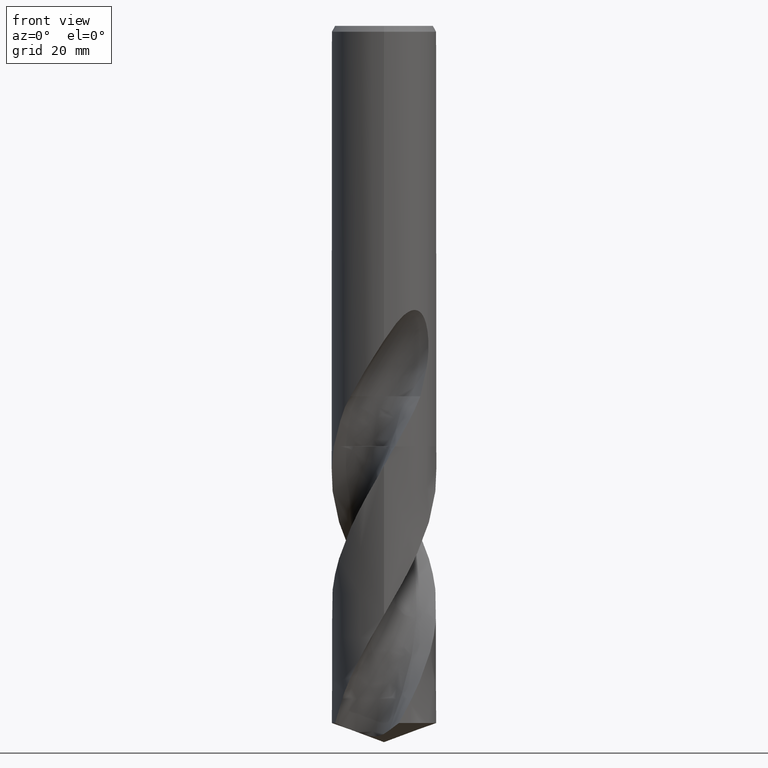
[diagram: clean part render]
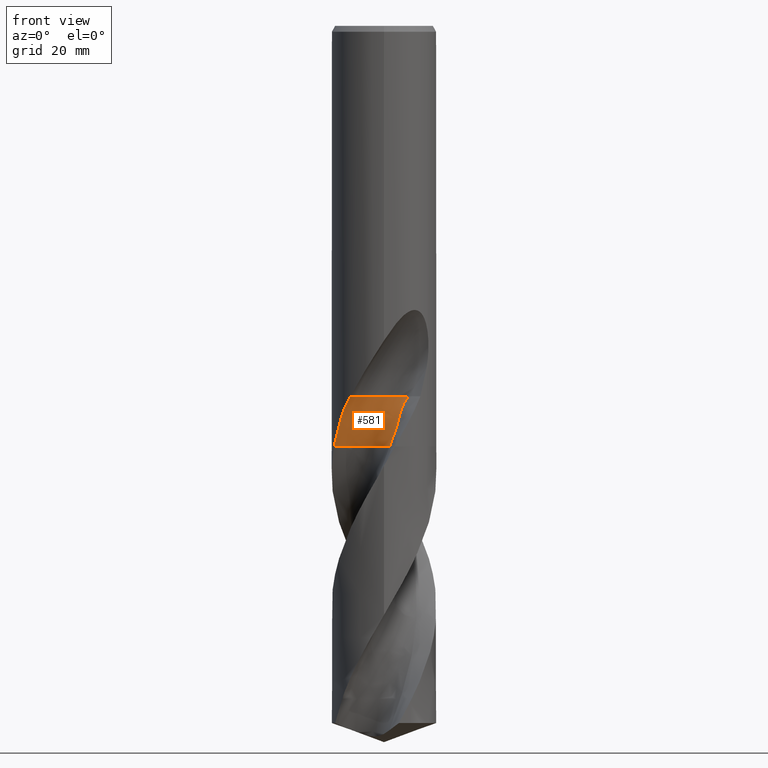
[diagram: same view with one face highlighted and labeled with its STEP entity id]
A machine part, front view. The second image highlights one B-rep face of the part: STEP entity #581.
In plain terms, the highlighted face is a freeform B-spline surface patch.
Its self-contained STEP definition (entity closure, byte-faithful):
#313=VERTEX_POINT('',#830);
#335=EDGE_CURVE('',#355,#313,#854,.T.);
#337=EDGE_CURVE('',#605,#355,#856,.T.);
#355=VERTEX_POINT('',#876);
#397=EDGE_CURVE('',#483,#605,#922,.T.);
#483=VERTEX_POINT('',#1017);
#495=VERTEX_POINT('',#1030);
#567=EDGE_CURVE('',#313,#495,#1109,.T.);
#581=ADVANCED_FACE('',(#1123),#1124,.F.);
#605=VERTEX_POINT('',#1151);
#649=EDGE_CURVE('',#495,#483,#1198,.T.);
#830=CARTESIAN_POINT('',(0.971475735130456,-5.57167524575661,-72.2));
#854=B_SPLINE_CURVE_WITH_KNOTS('',3,(#2276,#2277,#2278,#2279,#2280,#2281,#2282,#2283,#2284,#2285,#2286,#2287,#2288,#2289,#2290,#2291,#2292,#2293,#2294,#2295,#2296,#2297,#2298,#2299,#2300,#2301,#2302,#2303,#2304,#2305,#2306,#2307,#2308,#2309,#2310,#2311,#2312,#2313,#2314,#2315,#2316,#2317,#2318),.UNSPECIFIED.,.F.,.F.,(4,1,2,2,2,2,2,2,1,2,2,2,2,2,2,2,2,2,2,2,1,2,4),(0.0,1.19578194183412,2.39156388366823,3.58734582550235,4.78312776733646,7.17469165100469,9.56625553467293,11.9578194183412,14.3493833020094,19.1325110693459,23.9156388366823,28.6987666040188,33.4818943713552,38.2650221386917,43.0481499060282,47.8312776733646,52.6144054407011,57.3975332080376,62.180660975374,66.9637887427105,71.7469165100469,74.1384803937152,76.5300442773834),.UNSPECIFIED.);
#856=CIRCLE('',#2321,6.0);
#876=CARTESIAN_POINT('',(4.24264068704858,-4.45735931295143,-63.613));
#922=CIRCLE('',#3381,6.0);
#1017=CARTESIAN_POINT('',(-5.73492168841538,-6.93618578382549,-63.613));
#1030=CARTESIAN_POINT('',(-8.59815028993425,-2.659287797833,-72.2));
#1109=B_SPLINE_CURVE_WITH_KNOTS('',3,(#5304,#5305,#5306,#5307,#5308,#5309,#5310,#5311,#5312,#5313,#5314,#5315,#5316,#5317),.UNSPECIFIED.,.F.,.F.,(4,2,2,2,2,2,4),(0.0,2.34261914254253,4.68379508840427,7.02464312876339,9.36642841022082,10.9230604164539,12.4797344473652),.UNSPECIFIED.);
#1123=FACE_OUTER_BOUND('',#5339,.T.);
#1124=B_SPLINE_SURFACE_WITH_KNOTS('',3,3,((#5340,#5341,#5342,#5343,#5344,#5345,#5346,#5347,#5348,#5349,#5350,#5351,#5352,#5353,#5354,#5355,#5356,#5357,#5358,#5359,#5360,#5361,#5362,#5363,#5364,#5365,#5366,#5367,#5368,#5369,#5370,#5371,#5372,#5373,#5374,#5375,#5376,#5377,#5378,#5379,#5380,#5381,#5382),(#5383,#5384,#5385,#5386,#5387,#5388,#5389,#5390,#5391,#5392,#5393,#5394,#5395,#5396,#5397,#5398,#5399,#5400,#5401,#5402,#5403,#5404,#5405,#5406,#5407,#5408,#5409,#5410,#5411,#5412,#5413,#5414,#5415,#5416,#5417,#5418,#5419,#5420,#5421,#5422,#5423,#5424,#5425),(#5426,#5427,#5428,#5429,#5430,#5431,#5432,#5433,#5434,#5435,#5436,#5437,#5438,#5439,#5440,#5441,#5442,#5443,#5444,#5445,#5446,#5447,#5448,#5449,#5450,#5451,#5452,#5453,#5454,#5455,#5456,#5457,#5458,#5459,#5460,#5461,#5462,#5463,#5464,#5465,#5466,#5467,#5468),(#5469,#5470,#5471,#5472,#5473,#5474,#5475,#5476,#5477,#5478,#5479,#5480,#5481,#5482,#5483,#5484,#5485,#5486,#5487,#5488,#5489,#5490,#5491,#5492,#5493,#5494,#5495,#5496,#5497,#5498,#5499,#5500,#5501,#5502,#5503,#5504,#5505,#5506,#5507,#5508,#5509,#5510,#5511),(#5512,#5513,#5514,#5515,#5516,#5517,#5518,#5519,#5520,#5521,#5522,#5523,#5524,#5525,#5526,#5527,#5528,#5529,#5530,#5531,#5532,#5533,#5534,#5535,#5536,#5537,#5538,#5539,#5540,#5541,#5542,#5543,#5544,#5545,#5546,#5547,#5548,#5549,#5550,#5551,#5552,#5553,#5554),(#5555,#5556,#5557,#5558,#5559,#5560,#5561,#5562,#5563,#5564,#5565,#5566,#5567,#5568,#5569,#5570,#5571,#5572,#5573,#5574,#5575,#5576,#5577,#5578,#5579,#5580,#5581,#5582,#5583,#5584,#5585,#5586,#5587,#5588,#5589,#5590,#5591,#5592,#5593,#5594,#5595,#5596,#5597),(#5598,#5599,#5600,#5601,#5602,#5603,#5604,#5605,#5606,#5607,#5608,#5609,#5610,#5611,#5612,#5613,#5614,#5615,#5616,#5617,#5618,#5619,#5620,#5621,#5622,#5623,#5624,#5625,#5626,#5627,#5628,#5629,#5630,#5631,#5632,#5633,#5634,#5635,#5636,#5637,#5638,#5639,#5640),(#5641,#5642,#5643,#5644,#5645,#5646,#5647,#5648,#5649,#5650,#5651,#5652,#5653,#5654,#5655,#5656,#5657,#5658,#5659,#5660,#5661,#5662,#5663,#5664,#5665,#5666,#5667,#5668,#5669,#5670,#5671,#5672,#5673,#5674,#5675,#5676,#5677,#5678,#5679,#5680,#5681,#5682,#5683),(#5684,#5685,#5686,#5687,#5688,#5689,#5690,#5691,#5692,#5693,#5694,#5695,#5696,#5697,#5698,#5699,#5700,#5701,#5702,#5703,#5704,#5705,#5706,#5707,#5708,#5709,#5710,#5711,#5712,#5713,#5714,#5715,#5716,#5717,#5718,#5719,#5720,#5721,#5722,#5723,#5724,#5725,#5726),(#5727,#5728,#5729,#5730,#5731,#5732,#5733,#5734,#5735,#5736,#5737,#5738,#5739,#5740,#5741,#5742,#5743,#5744,#5745,#5746,#5747,#5748,#5749,#5750,#5751,#5752,#5753,#5754,#5755,#5756,#5757,#5758,#5759,#5760,#5761,#5762,#5763,#5764,#5765,#5766,#5767,#5768,#5769),(#5770,#5771,#5772,#5773,#5774,#5775,#5776,#5777,#5778,#5779,#5780,#5781,#5782,#5783,#5784,#5785,#5786,#5787,#5788,#5789,#5790,#5791,#5792,#5793,#5794,#5795,#5796,#5797,#5798,#5799,#5800,#5801,#5802,#5803,#5804,#5805,#5806,#5807,#5808,#5809,#5810,#5811,#5812),(#5813,#5814,#5815,#5816,#5817,#5818,#5819,#5820,#5821,#5822,#5823,#5824,#5825,#5826,#5827,#5828,#5829,#5830,#5831,#5832,#5833,#5834,#5835,#5836,#5837,#5838,#5839,#5840,#5841,#5842,#5843,#5844,#5845,#5846,#5847,#5848,#5849,#5850,#5851,#5852,#5853,#5854,#5855),(#5856,#5857,#5858,#5859,#5860,#5861,#5862,#5863,#5864,#5865,#5866,#5867,#5868,#5869,#5870,#5871,#5872,#5873,#5874,#5875,#5876,#5877,#5878,#5879,#5880,#5881,#5882,#5883,#5884,#5885,#5886,#5887,#5888,#5889,#5890,#5891,#5892,#5893,#5894,#5895,#5896,#5897,#5898),(#5899,#5900,#5901,#5902,#5903,#5904,#5905,#5906,#5907,#5908,#5909,#5910,#5911,#5912,#5913,#5914,#5915,#5916,#5917,#5918,#5919,#5920,#5921,#5922,#5923,#5924,#5925,#5926,#5927,#5928,#5929,#5930,#5931,#5932,#5933,#5934,#5935,#5936,#5937,#5938,#5939,#5940,#5941)),.UNSPECIFIED.,.F.,.F.,.F.,(4,1,1,1,1,1,1,1,1,1,1,4),(4,1,2,2,2,2,2,2,1,2,2,2,2,2,2,2,2,2,2,2,1,2,4),(8.06827116691296E-017,0.294525393809048,0.589050787618095,0.883576181427143,1.17810157523619,1.47262696904524,1.76715236285429,2.06167775666333,2.35620315047238,2.65072854428143,2.94525393809048,3.14160420062984),(0.0,1.19578194183412,2.39156388366823,3.58734582550235,4.78312776733646,7.17469165100469,9.56625553467293,11.9578194183412,14.3493833020094,19.1325110693459,23.9156388366823,28.6987666040188,33.4818943713552,38.2650221386917,43.0481499060282,47.8312776733646,52.6144054407011,57.3975332080376,62.180660975374,66.9637887427105,71.7469165100469,74.1384803937152,76.5300442773834),.UNSPECIFIED.);
#1151=CARTESIAN_POINT('',(0.982866494863649,-2.78102920504439,-63.613));
#1198=B_SPLINE_CURVE_WITH_KNOTS('',3,(#6681,#6682,#6683,#6684,#6685,#6686,#6687,#6688,#6689,#6690,#6691,#6692,#6693,#6694),.UNSPECIFIED.,.F.,.F.,(4,2,2,2,2,2,4),(0.0,2.51497102753095,4.40140357253815,5.0854005997743,6.3209228325184,7.33800256463867,10.2288207719807),.UNSPECIFIED.);
#2276=CARTESIAN_POINT('',(4.24264068704858,-4.45735931295143,-63.613));
#2277=CARTESIAN_POINT('',(3.99184971480068,-4.44339832717795,-63.9219604895747));
#2278=CARTESIAN_POINT('',(3.55141274316238,-4.44710550667542,-64.5391119708282));
#2279=CARTESIAN_POINT('',(3.23426353705191,-4.50735511855796,-65.1547219489491));
#2280=CARTESIAN_POINT('',(2.97760663075765,-4.59716562354658,-65.7705236812179));
#2281=CARTESIAN_POINT('',(2.8837643854183,-4.65927733703094,-66.0786084281627));
#2282=CARTESIAN_POINT('',(2.75652983630361,-4.82242785907191,-66.6983203833031));
#2283=CARTESIAN_POINT('',(2.69044340102281,-4.90209076743256,-67.0087591284033));
#2284=CARTESIAN_POINT('',(2.48456900634331,-5.13478026539436,-67.9418259341438));
#2285=CARTESIAN_POINT('',(2.29562159573407,-5.24854553214003,-68.5635772143915));
#2286=CARTESIAN_POINT('',(1.8512830908097,-5.38980899876269,-69.7994910424539));
#2287=CARTESIAN_POINT('',(1.62437682005681,-5.44665689080103,-70.4171205676312));
#2288=CARTESIAN_POINT('',(1.16842171806357,-5.53685254244701,-71.651669847765));
#2289=CARTESIAN_POINT('',(0.945066742041519,-5.57755189841988,-72.2697320983262));
#2290=CARTESIAN_POINT('',(0.505070410200188,-5.65083949107343,-73.5090046150527));
#2291=CARTESIAN_POINT('',(-0.171906331511537,-5.70390413066005,-75.3665400420304));
#2292=CARTESIAN_POINT('',(-0.855278903470644,-5.61850456333409,-77.2210967160858));
#2293=CARTESIAN_POINT('',(-1.7360014571889,-5.4180824675941,-79.6961450900085));
#2294=CARTESIAN_POINT('',(-2.16505067583684,-5.25419825455156,-80.9335760342903));
#2295=CARTESIAN_POINT('',(-2.97307998789446,-4.85094301423908,-83.4083112303298));
#2296=CARTESIAN_POINT('',(-3.3509810801269,-4.59010411733905,-84.6457053198216));
#2297=CARTESIAN_POINT('',(-4.03998321585692,-4.00606525305762,-87.1205120392962));
#2298=CARTESIAN_POINT('',(-4.34506887399339,-3.66282121604079,-88.35790853642));
#2299=CARTESIAN_POINT('',(-4.87571279999114,-2.931935410881,-90.8326939089567));
#2300=CARTESIAN_POINT('',(-5.09058669145781,-2.52609648597529,-92.0700885549745));
#2301=CARTESIAN_POINT('',(-5.4325039087877,-1.69012595979952,-94.5448841616523));
#2302=CARTESIAN_POINT('',(-5.54488234916025,-1.24489613603748,-95.7822780271807));
#2303=CARTESIAN_POINT('',(-5.67862873758927,-0.351732581284816,-98.2570695241379));
#2304=CARTESIAN_POINT('',(-5.68205977137425,0.107452498078658,-99.4944653849482));
#2305=CARTESIAN_POINT('',(-5.59972921270233,1.00686856694413,-101.96925122842));
#2306=CARTESIAN_POINT('',(-5.49395457682976,1.45374255022339,-103.206651985817));
#2307=CARTESIAN_POINT('',(-5.20025576634246,2.30789019737168,-105.681449189052));
#2308=CARTESIAN_POINT('',(-4.9913917422373,2.71685545988852,-106.918832955109));
#2309=CARTESIAN_POINT('',(-4.50344917817408,3.47684797307517,-109.3935992443));
#2310=CARTESIAN_POINT('',(-4.20344121431763,3.82452635440693,-110.631015465607));
#2311=CARTESIAN_POINT('',(-3.54853690060283,4.44675450315793,-113.105906235705));
#2312=CARTESIAN_POINT('',(-3.17478060632659,4.71332198287949,-114.343268770571));
#2313=CARTESIAN_POINT('',(-2.39284068604233,5.16357334396649,-116.817895062131));
#2314=CARTESIAN_POINT('',(-1.75087865030108,5.41657421606941,-118.674425602827));
#2315=CARTESIAN_POINT('',(-1.09116454886021,5.56645797976707,-120.528816819276));
#2316=CARTESIAN_POINT('',(-0.652049580851345,5.64830319364401,-121.765112896837));
#2317=CARTESIAN_POINT('',(-0.419688736316046,5.65952362823183,-122.383911655654));
#2318=CARTESIAN_POINT('',(-0.181091492057835,5.64253718818886,-123.00203966582));
#2321=AXIS2_PLACEMENT_3D('',#8365,#8366,#8367);
#3381=AXIS2_PLACEMENT_3D('',#8430,#8431,#8432);
#5304=CARTESIAN_POINT('',(0.971475735130453,-5.57167524575659,-72.2));
#5305=CARTESIAN_POINT('',(0.749418834774526,-4.82304085612544,-72.2));
#5306=CARTESIAN_POINT('',(0.383272658657281,-4.1249499535059,-72.2));
#5307=CARTESIAN_POINT('',(-0.595854879744768,-2.9088855586613,-72.2));
#5308=CARTESIAN_POINT('',(-1.19929415886863,-2.4024663845777,-72.2));
#5309=CARTESIAN_POINT('',(-2.5663073061415,-1.64952433632935,-72.2));
#5310=CARTESIAN_POINT('',(-3.3167369408343,-1.41019191666941,-72.2));
#5311=CARTESIAN_POINT('',(-4.86745875971966,-1.23251759591532,-72.2));
#5312=CARTESIAN_POINT('',(-5.65290279175016,-1.29599771244217,-72.2));
#5313=CARTESIAN_POINT('',(-6.90347109898748,-1.6491539380638,-72.2));
#5314=CARTESIAN_POINT('',(-7.38242288962679,-1.85436508964187,-72.2000000000001));
#5315=CARTESIAN_POINT('',(-8.27555761415084,-2.38284236871133,-72.2000000000001));
#5316=CARTESIAN_POINT('',(-8.6859869597221,-2.70389147025735,-72.2));
#5317=CARTESIAN_POINT('',(-9.05,-3.07368511926814,-72.2));
#5339=EDGE_LOOP('',(#8607,#8608,#8609,#8610,#8611));
#5340=CARTESIAN_POINT('',(-4.24264068704858,-12.9426406870486,-63.613));
#5341=CARTESIAN_POINT('',(-4.49410517187829,-12.9280061886827,-63.9219449773615));
#5342=CARTESIAN_POINT('',(-5.00038981777688,-12.8665892635691,-64.5422166500592));
#5343=CARTESIAN_POINT('',(-5.50859146904047,-12.7290476830163,-65.1652024960231));
#5344=CARTESIAN_POINT('',(-6.01312319455351,-12.5470288974191,-65.7874434253979));
#5345=CARTESIAN_POINT('',(-6.26364937184898,-12.4315214565417,-66.0980931940682));
#5346=CARTESIAN_POINT('',(-6.75399093622371,-12.1458827756427,-66.7155735371025));
#5347=CARTESIAN_POINT('',(-6.99413441467529,-11.9938610945223,-67.0237320411335));
#5348=CARTESIAN_POINT('',(-7.69789062080469,-11.5109297059719,-67.9462134063866));
#5349=CARTESIAN_POINT('',(-8.14752637383775,-11.1776053216324,-68.5614777811024));
#5350=CARTESIAN_POINT('',(-9.0164628765494,-10.4991276422137,-69.8005130662699));
#5351=CARTESIAN_POINT('',(-9.43127227932317,-10.1355621953012,-70.4204101482136));
#5352=CARTESIAN_POINT('',(-10.2148291589882,-9.36238255811835,-71.6609900691649));
#5353=CARTESIAN_POINT('',(-10.582103032129,-8.94872702289917,-72.2803963403265));
#5354=CARTESIAN_POINT('',(-11.2587606557898,-8.07008565668913,-73.5156934032923));
#5355=CARTESIAN_POINT('',(-12.1978583633769,-6.69674430405435,-75.3701763417519));
#5356=CARTESIAN_POINT('',(-12.8857486942738,-5.17572096743599,-77.2279858514397));
#5357=CARTESIAN_POINT('',(-13.5417138891053,-3.06153723233831,-79.7024892904261));
#5358=CARTESIAN_POINT('',(-13.7464296713277,-1.9677373266301,-80.9398451454345));
#5359=CARTESIAN_POINT('',(-13.8813600005638,0.242039804003063,-83.4146984360404));
#5360=CARTESIAN_POINT('',(-13.8202874555455,1.35314509516591,-84.6520954912055));
#5361=CARTESIAN_POINT('',(-13.4267369338371,3.53166157703948,-87.1268689038967));
#5362=CARTESIAN_POINT('',(-13.103630025218,4.59649435775723,-88.3642632875652));
#5363=CARTESIAN_POINT('',(-12.2039761513477,6.61924916473669,-90.8390604633844));
#5364=CARTESIAN_POINT('',(-11.6372253310084,7.57688556872354,-92.0764568063751));
#5365=CARTESIAN_POINT('',(-10.2829393859684,9.32812631453989,-94.5512429048563));
#5366=CARTESIAN_POINT('',(-9.50496318037043,10.1237758468368,-95.7886405870159));
#5367=CARTESIAN_POINT('',(-7.7734470406116,11.5032479173475,-98.263429907499));
#5368=CARTESIAN_POINT('',(-6.82875958562033,12.0913521293672,-99.5008235234877));
#5369=CARTESIAN_POINT('',(-4.81921666546804,13.02017178939,-101.975623486626));
#5370=CARTESIAN_POINT('',(-3.76191268958958,13.3671228652639,-103.213017792021));
#5371=CARTESIAN_POINT('',(-1.58932162237623,13.792211596537,-105.687795731443));
#5372=CARTESIAN_POINT('',(-0.479866469428093,13.8781712254266,-106.925193531646));
#5373=CARTESIAN_POINT('',(1.73154231752139,13.7750805312218,-109.400008495146));
#5374=CARTESIAN_POINT('',(2.82964992031788,13.5950915233738,-110.637388003313));
#5375=CARTESIAN_POINT('',(4.95336474507951,12.9700090672411,-113.112138099681));
#5376=CARTESIAN_POINT('',(5.97745967125131,12.534306424348,-114.349633844239));
#5377=CARTESIAN_POINT('',(7.89160716009322,11.4214732442257,-116.824585812774));
#5378=CARTESIAN_POINT('',(9.2282170786272,10.4230059558837,-118.680060746701));
#5379=CARTESIAN_POINT('',(10.3557935115381,9.20052643935552,-120.535150402933));
#5380=CARTESIAN_POINT('',(11.0527251953334,8.33856010582883,-121.772016995176));
#5381=CARTESIAN_POINT('',(11.378670177648,7.8943477468716,-122.389812972891));
#5382=CARTESIAN_POINT('',(11.6835397836118,7.43989230028192,-123.008307730503));
#5383=CARTESIAN_POINT('',(-4.65914407156236,-12.5261004599468,-63.613));
#5384=CARTESIAN_POINT('',(-4.91057549280717,-12.5114329014716,-63.9219441240965));
#5385=CARTESIAN_POINT('',(-5.41366326647045,-12.4467838602583,-64.5423874229073));
#5386=CARTESIAN_POINT('',(-5.91215500223232,-12.2998640812852,-65.1657789722609));
#5387=CARTESIAN_POINT('',(-6.40334206606923,-12.1056778686353,-65.7883740917699));
#5388=CARTESIAN_POINT('',(-6.64514860137759,-11.9824793379926,-66.0991649459844));
#5389=CARTESIAN_POINT('',(-7.11345969024043,-11.6790178659794,-66.7165225405031));
#5390=CARTESIAN_POINT('',(-7.34223027527148,-11.5184528761053,-67.024555621703));
#5391=CARTESIAN_POINT('',(-8.01085828362677,-11.0110837967681,-67.9464547352447));
#5392=CARTESIAN_POINT('',(-8.4385468123975,-10.6649637448211,-68.5613622950569));
#5393=CARTESIAN_POINT('',(-9.2672432952533,-9.96564535065292,-69.8005692898164));
#5394=CARTESIAN_POINT('',(-9.66141522507873,-9.59285710281926,-70.4205910833));
#5395=CARTESIAN_POINT('',(-10.4025900456116,-8.80359810174911,-71.6615027314455));
#5396=CARTESIAN_POINT('',(-10.7475602777494,-8.38287891205146,-72.2809829317883));
#5397=CARTESIAN_POINT('',(-11.3774898420573,-7.492622575737,-73.5160613086653));
#5398=CARTESIAN_POINT('',(-12.2465683057226,-6.10641743084887,-75.3703763639415));
#5399=CARTESIAN_POINT('',(-12.8639871627517,-4.58517547925218,-77.2283647856213));
#5400=CARTESIAN_POINT('',(-13.4260110421513,-2.4820287323482,-79.7028382508501));
#5401=CARTESIAN_POINT('',(-13.5850799860529,-1.39924282006029,-80.9401899423949));
#5402=CARTESIAN_POINT('',(-13.6313340377502,0.777489549625262,-83.4150497949737));
#5403=CARTESIAN_POINT('',(-13.5285249665119,1.86704484599133,-84.6524469539009));
#5404=CARTESIAN_POINT('',(-13.0567077363111,3.99241796681623,-87.1272185870741));
#5405=CARTESIAN_POINT('',(-12.6981811924831,5.02641271792139,-88.3646128748062));
#5406=CARTESIAN_POINT('',(-11.7351157489851,6.97895488742411,-90.8394106067247));
#5407=CARTESIAN_POINT('',(-11.1412802310528,7.89822205032598,-92.0768071061784));
#5408=CARTESIAN_POINT('',(-9.74206962920693,9.56619825551823,-94.5515926485602));
#5409=CARTESIAN_POINT('',(-8.94689410929379,10.3181417154883,-95.7889906085655));
#5410=CARTESIAN_POINT('',(-7.19151035014492,11.6060515194074,-98.2637797066088));
#5411=CARTESIAN_POINT('',(-6.24049663704397,12.1476146352621,-99.5011733051475));
#5412=CARTESIAN_POINT('',(-4.22951458725611,12.9818320557169,-101.975973935605));
#5413=CARTESIAN_POINT('',(-3.17711765585823,13.2820751023458,-103.213367967073));
#5414=CARTESIAN_POINT('',(-1.02559216218648,13.6149345257979,-105.688144794296));
#5415=CARTESIAN_POINT('',(0.0680054597627765,13.6566870233751,-106.925543507985));
#5416=CARTESIAN_POINT('',(2.23704383786249,13.4689974836474,-109.400360918322));
#5417=CARTESIAN_POINT('',(3.30924779094499,13.2498328619314,-110.637738546174));
#5418=CARTESIAN_POINT('',(5.37173195670323,12.552652785993,-113.11248085715));
#5419=CARTESIAN_POINT('',(6.36135275062111,12.0850281185885,-114.349983900756));
#5420=CARTESIAN_POINT('',(8.19876969995141,10.9166210893828,-116.824953886912));
#5421=CARTESIAN_POINT('',(9.47394665694462,9.88405796467554,-118.680370684182));
#5422=CARTESIAN_POINT('',(10.5341560507997,8.63861519854153,-120.535498787767));
#5423=CARTESIAN_POINT('',(11.1847577311921,7.7639953514772,-121.772396744017));
#5424=CARTESIAN_POINT('',(11.4883464712829,7.31519017389342,-122.390137614606));
#5425=CARTESIAN_POINT('',(11.7717416316217,6.85748252594276,-123.008652503016));
#5426=CARTESIAN_POINT('',(-5.36858526657363,-11.5695730948488,-63.613));
#5427=CARTESIAN_POINT('',(-5.61994076581025,-11.5548492254407,-63.9219426433747));
#5428=CARTESIAN_POINT('',(-6.11567681717526,-11.4846843082899,-64.542683750527));
#5429=CARTESIAN_POINT('',(-6.59196924676397,-11.3218884079689,-65.1667793027969));
#5430=CARTESIAN_POINT('',(-7.05286101632276,-11.107325619986,-65.789989010925));
#5431=CARTESIAN_POINT('',(-7.27494890829169,-10.9713313484961,-66.1010246905909));
#5432=CARTESIAN_POINT('',(-7.69391702505488,-10.6387590741161,-66.7181692853782));
#5433=CARTESIAN_POINT('',(-7.89740999742451,-10.4644809455048,-67.0259847256299));
#5434=CARTESIAN_POINT('',(-8.48853973739906,-9.91865610896371,-67.9468735051905));
#5435=CARTESIAN_POINT('',(-8.86854253308876,-9.5534540395119,-68.5611619240053));
#5436=CARTESIAN_POINT('',(-9.61058457992135,-8.82438886680424,-69.8006668263856));
#5437=CARTESIAN_POINT('',(-9.96074945293422,-8.43927558294339,-70.4209050688791));
#5438=CARTESIAN_POINT('',(-10.6123978985407,-7.63042683491461,-71.6623923017132));
#5439=CARTESIAN_POINT('',(-10.9106692471613,-7.20219469352577,-72.2820007812912));
#5440=CARTESIAN_POINT('',(-11.4437045730717,-6.30256565812234,-73.5166997374331));
#5441=CARTESIAN_POINT('',(-12.1689393208581,-4.91139666646344,-75.370723423726));
#5442=CARTESIAN_POINT('',(-12.6453596030156,-3.41061352175991,-77.2290223278425));
#5443=CARTESIAN_POINT('',(-13.0227854376022,-1.35739459464455,-79.7034437783159));
#5444=CARTESIAN_POINT('',(-13.093832581263,-0.310170407108541,-80.9407883707753));
#5445=CARTESIAN_POINT('',(-12.9725438738229,1.77418264811887,-83.4156593621102));
#5446=CARTESIAN_POINT('',(-12.7926570338138,2.80826506203645,-84.6530568952942));
#5447=CARTESIAN_POINT('',(-12.1800746493944,4.80415086450278,-87.1278252999688));
#5448=CARTESIAN_POINT('',(-11.7598573589859,5.76597101862394,-88.3652193397159));
#5449=CARTESIAN_POINT('',(-10.6907962833148,7.55929420072338,-90.8400183402379));
#5450=CARTESIAN_POINT('',(-10.0541720976949,8.3937966994252,-92.0774149175792));
#5451=CARTESIAN_POINT('',(-8.58980732927363,9.8819337963818,-94.5521995785732));
#5452=CARTESIAN_POINT('',(-7.7731951001992,10.5413707529602,-95.7895978026221));
#5453=CARTESIAN_POINT('',(-5.99722904502307,11.6390906896032,-98.2643868672745));
#5454=CARTESIAN_POINT('',(-5.04736392923353,12.0857017595262,-99.5017801476056));
#5455=CARTESIAN_POINT('',(-3.06155505299221,12.7303002226596,-101.976582159288));
#5456=CARTESIAN_POINT('',(-2.03282137553454,12.9385882437789,-103.213975485624));
#5457=CARTESIAN_POINT('',(0.0492280542303963,13.0932473330156,-105.688750619262));
#5458=CARTESIAN_POINT('',(1.09800446811656,13.0512933418051,-106.926150373721));
#5459=CARTESIAN_POINT('',(3.15722236154518,12.7069805665156,-109.400972882205));
#5460=CARTESIAN_POINT('',(4.16600607493115,12.4171506810092,-110.638346762055));
#5461=CARTESIAN_POINT('',(6.08465866033253,11.5939407529614,-113.113075681675));
#5462=CARTESIAN_POINT('',(6.99587010113756,11.0726984197006,-114.350591501548));
#5463=CARTESIAN_POINT('',(8.66335734073134,9.81590268122293,-116.825592413044));
#5464=CARTESIAN_POINT('',(9.80556620400836,8.73336836357658,-118.680908577387));
#5465=CARTESIAN_POINT('',(10.7242412395013,7.46197765963636,-120.536103282299));
#5466=CARTESIAN_POINT('',(11.278436890688,6.57579001278329,-121.773055733994));
#5467=CARTESIAN_POINT('',(11.5359542135797,6.12442885074865,-122.390700802172));
#5468=CARTESIAN_POINT('',(11.7754388961091,5.66658480502962,-123.009250765064));
#5469=CARTESIAN_POINT('',(-5.97041833799895,-9.88759179198031,-63.6129999999998));
#5470=CARTESIAN_POINT('',(-6.22164032777569,-9.87282015596255,-63.9219412916721));
#5471=CARTESIAN_POINT('',(-6.70442136216115,-9.79793893497781,-64.5429543370633));
#5472=CARTESIAN_POINT('',(-7.14193470435874,-9.622020344237,-65.1676927289059));
#5473=CARTESIAN_POINT('',(-7.55046636350555,-9.39140002742234,-65.791463641969));
#5474=CARTESIAN_POINT('',(-7.73867734038814,-9.24562451975937,-66.1027228757635));
#5475=CARTESIAN_POINT('',(-8.07413923038838,-8.89275254114932,-66.7196729731778));
#5476=CARTESIAN_POINT('',(-8.23537567599914,-8.70979762831979,-67.0272896826705));
#5477=CARTESIAN_POINT('',(-8.69851397962238,-8.14251996150999,-67.9472558905871));
#5478=CARTESIAN_POINT('',(-9.00175695704139,-7.77069199861054,-68.5609789448616));
#5479=CARTESIAN_POINT('',(-9.60645737916169,-7.0366617148604,-69.8007559045045));
#5480=CARTESIAN_POINT('',(-9.88808535941242,-6.65301992579096,-70.4211917750757));
#5481=CARTESIAN_POINT('',(-10.4026927529321,-5.85503638370245,-71.6632045957992));
#5482=CARTESIAN_POINT('',(-10.6306586440211,-5.43635527497984,-72.2829302241223));
#5483=CARTESIAN_POINT('',(-11.0205258822957,-4.56546643520901,-73.5172826883071));
#5484=CARTESIAN_POINT('',(-11.5371187223049,-3.22981089691623,-75.3710403467694));
#5485=CARTESIAN_POINT('',(-11.8200518926456,-1.81979496181662,-77.2296227601314));
#5486=CARTESIAN_POINT('',(-11.9542386971844,0.0813694214883973,-79.7039966900504));
#5487=CARTESIAN_POINT('',(-11.9144208920183,1.03921630432941,-80.9413346904641));
#5488=CARTESIAN_POINT('',(-11.5928610033098,2.91800479550347,-83.4162160966756));
#5489=CARTESIAN_POINT('',(-11.3264895261515,3.83889424659998,-84.6536138677905));
#5490=CARTESIAN_POINT('',(-10.5682329561595,5.58760952819448,-87.1283792883098));
#5491=CARTESIAN_POINT('',(-10.0908912772455,6.41896265777249,-88.3657731978814));
#5492=CARTESIAN_POINT('',(-8.93901302057976,7.93757812572927,-90.8405732003864));
#5493=CARTESIAN_POINT('',(-8.27787979076814,8.63177239343291,-92.0779699504979));
#5494=CARTESIAN_POINT('',(-6.79830312994792,9.83338739224129,-94.5527537597986));
#5495=CARTESIAN_POINT('',(-5.99120276822019,10.3507011603192,-95.790152386238));
#5496=CARTESIAN_POINT('',(-4.26851267008937,11.1664505944863,-98.2649411447032));
#5497=CARTESIAN_POINT('',(-3.36164447529128,11.4772630315461,-99.5023342701655));
#5498=CARTESIAN_POINT('',(-1.49454255807586,11.8606353568095,-101.977137547379));
#5499=CARTESIAN_POINT('',(-0.539819345509152,11.9472311717464,-103.214530317253));
#5500=CARTESIAN_POINT('',(1.36490104244836,11.8763471712547,-105.6893037253));
#5501=CARTESIAN_POINT('',(2.31288776517076,11.73375488164,-106.92670477794));
#5502=CARTESIAN_POINT('',(4.14626033926824,11.2124403698607,-109.401531425202));
#5503=CARTESIAN_POINT('',(5.03323546343257,10.8487913893512,-110.638902106762));
#5504=CARTESIAN_POINT('',(6.69054371251094,9.90730553861208,-113.113618866584));
#5505=CARTESIAN_POINT('',(7.46585414167664,9.34324219358609,-114.351146181045));
#5506=CARTESIAN_POINT('',(8.85092593180118,8.0335673648129,-116.826175606651));
#5507=CARTESIAN_POINT('',(9.78050536741576,6.93720477056117,-118.68139969209));
#5508=CARTESIAN_POINT('',(10.4847157640473,5.69020012332516,-120.53665527914));
#5509=CARTESIAN_POINT('',(10.8954882130657,4.8293888734298,-121.773657459974));
#5510=CARTESIAN_POINT('',(11.0857593229566,4.39442119219567,-122.391215120285));
#5511=CARTESIAN_POINT('',(11.2621534143405,3.95550273077601,-123.009797054756));
#5512=CARTESIAN_POINT('',(-6.05808134824821,-8.10333302552071,-63.613));
#5513=CARTESIAN_POINT('',(-6.30916171873843,-8.08855442894018,-63.9219409243529));
#5514=CARTESIAN_POINT('',(-6.77817643604788,-8.01292067808637,-64.5430277084907));
#5515=CARTESIAN_POINT('',(-7.17477161263071,-7.83570127281624,-65.1679404059982));
#5516=CARTESIAN_POINT('',(-7.52853712173122,-7.60491387049338,-65.7918634940849));
#5517=CARTESIAN_POINT('',(-7.68149091947646,-7.45961206213166,-66.1031833411096));
#5518=CARTESIAN_POINT('',(-7.93114932207932,-7.11155526571189,-66.7200807057579));
#5519=CARTESIAN_POINT('',(-8.04942975340801,-6.93256383090294,-67.0276435250217));
#5520=CARTESIAN_POINT('',(-8.38385968862177,-6.38191172564522,-67.9473595772996));
#5521=CARTESIAN_POINT('',(-8.6117248229757,-6.02602541301751,-68.5609293308178));
#5522=CARTESIAN_POINT('',(-9.08355624333238,-5.32711211725359,-69.8007800569906));
#5523=CARTESIAN_POINT('',(-9.30002569631525,-4.96477376987201,-70.4212695094315));
#5524=CARTESIAN_POINT('',(-9.68664721537831,-4.2169683432417,-71.6634248588262));
#5525=CARTESIAN_POINT('',(-9.85010760623976,-3.82783556409454,-72.2831822278613));
#5526=CARTESIAN_POINT('',(-10.1113142312556,-3.0260092587092,-73.5174407748744));
#5527=CARTESIAN_POINT('',(-10.4443640273532,-1.80404261932651,-75.371126264757));
#5528=CARTESIAN_POINT('',(-10.5684900398189,-0.537051849051603,-77.2297855655842));
#5529=CARTESIAN_POINT('',(-10.514050967036,1.14799658200369,-79.7041466174583));
#5530=CARTESIAN_POINT('',(-10.3940869279354,1.98813220787989,-80.9414828599772));
#5531=CARTESIAN_POINT('',(-9.94055204344147,3.61207196668741,-83.4163670237979));
#5532=CARTESIAN_POINT('',(-9.62427818026281,4.39953722866303,-84.6537648370475));
#5533=CARTESIAN_POINT('',(-8.79837023894061,5.86943803275375,-87.128529559576));
#5534=CARTESIAN_POINT('',(-8.30423662622822,6.55935965897123,-88.3659233986353));
#5535=CARTESIAN_POINT('',(-7.15285099789257,7.7910556091377,-90.8407236320904));
#5536=CARTESIAN_POINT('',(-6.50899356462537,8.34386871191623,-92.078120421809));
#5537=CARTESIAN_POINT('',(-5.09803325054068,9.26688343036735,-94.5529040553871));
#5538=CARTESIAN_POINT('',(-4.34129150263208,9.65095499785413,-95.7903028039409));
#5539=CARTESIAN_POINT('',(-2.75143532162161,10.2123407703962,-98.2650913981678));
#5540=CARTESIAN_POINT('',(-1.92513296622888,10.4056834779097,-99.502484466857));
#5541=CARTESIAN_POINT('',(-0.247456732087765,10.5735369228824,-101.977288197984));
#5542=CARTESIAN_POINT('',(0.601117452541116,10.5651648088888,-103.214680817482));
#5543=CARTESIAN_POINT('',(2.27067257714615,10.3299256125694,-105.689453645866));
#5544=CARTESIAN_POINT('',(3.09299576932647,10.1202863244699,-106.926855243037));
#5545=CARTESIAN_POINT('',(4.65886687684833,9.49515141278017,-109.401682739245));
#5546=CARTESIAN_POINT('',(5.40784981020397,9.09622127896903,-110.639052750581));
#5547=CARTESIAN_POINT('',(6.78073342881199,8.11741694204671,-113.113766092528));
#5548=CARTESIAN_POINT('',(7.41356435594436,7.55182657849324,-114.35129666054));
#5549=CARTESIAN_POINT('',(8.51303151709299,6.2735307711942,-116.826333665032));
#5550=CARTESIAN_POINT('',(9.23512309093038,5.22565863903412,-118.681532844447));
#5551=CARTESIAN_POINT('',(9.74118265148673,4.06424599554766,-120.536804988874));
#5552=CARTESIAN_POINT('',(10.0220740896796,3.26935208243344,-121.773820585803));
#5553=CARTESIAN_POINT('',(10.1527533963287,2.86959264468619,-122.391354616096));
#5554=CARTESIAN_POINT('',(10.2742673876393,2.46709911435893,-123.009945182926));
#5555=CARTESIAN_POINT('',(-5.62402476264869,-6.37045708375645,-63.6130000000002));
#5556=CARTESIAN_POINT('',(-5.87496758355014,-6.35571293489844,-63.9219415755997));
#5557=CARTESIAN_POINT('',(-6.33059026608856,-6.28335524467924,-64.5428975436657));
#5558=CARTESIAN_POINT('',(-6.68765205307134,-6.11676888957224,-65.1675010063764));
#5559=CARTESIAN_POINT('',(-6.98896184173619,-5.90171928604761,-65.7911541297814));
#5560=CARTESIAN_POINT('',(-7.10831453845674,-5.76710530574015,-66.1023664369));
#5561=CARTESIAN_POINT('',(-7.27726158409792,-5.44856386658275,-66.7193573636798));
#5562=CARTESIAN_POINT('',(-7.35558589466486,-5.28583484744768,-67.027015781448));
#5563=CARTESIAN_POINT('',(-7.57167485811852,-4.78845491509866,-67.9471756325263));
#5564=CARTESIAN_POINT('',(-7.73203568808246,-4.46970486844951,-68.5610173465053));
#5565=CARTESIAN_POINT('',(-8.08691338921206,-3.84296643750963,-69.8007372119602));
#5566=CARTESIAN_POINT('',(-8.24721411212151,-3.51992876663046,-70.4211315859449));
#5567=CARTESIAN_POINT('',(-8.52592712123117,-2.85729309772048,-71.6630341132733));
#5568=CARTESIAN_POINT('',(-8.63623715923746,-2.51516122150827,-72.2827351279521));
#5569=CARTESIAN_POINT('',(-8.79437088467071,-1.81677210223604,-73.5171603447392));
#5570=CARTESIAN_POINT('',(-8.98478321160147,-0.756878945816268,-75.3709738203012));
#5571=CARTESIAN_POINT('',(-8.99845855897264,0.327146023061363,-77.2294967078959));
#5572=CARTESIAN_POINT('',(-8.82625109112675,1.75062901340834,-79.7038806643003));
#5573=CARTESIAN_POINT('',(-8.66376183940897,2.45485675347791,-80.9412200674925));
#5574=CARTESIAN_POINT('',(-8.15791371609091,3.7966110799567,-83.416099197098));
#5575=CARTESIAN_POINT('',(-7.83261739659875,4.44191146854542,-84.6534969079843));
#5576=CARTESIAN_POINT('',(-7.02290696638407,5.62536530963718,-87.1282630660318));
#5577=CARTESIAN_POINT('',(-6.55376002327938,6.17507103633904,-88.365656925372));
#5578=CARTESIAN_POINT('',(-5.48613441630266,7.13234516595238,-90.8404567615006));
#5579=CARTESIAN_POINT('',(-4.89984982492041,7.55487992087368,-92.0778534255749));
#5580=CARTESIAN_POINT('',(-3.63542486011488,8.23120919429237,-94.5526374692527));
#5581=CARTESIAN_POINT('',(-2.96555158994728,8.50239438688996,-95.790035939561));
#5582=CARTESIAN_POINT('',(-1.57664763644592,8.85892910249303,-98.2648248500295));
#5583=CARTESIAN_POINT('',(-0.861541716937003,8.96324747300278,-99.5022179641994));
#5584=CARTESIAN_POINT('',(0.572303452704583,8.97984979341509,-101.977020975641));
#5585=CARTESIAN_POINT('',(1.29173156192012,8.91141260860229,-103.214413918006));
#5586=CARTESIAN_POINT('',(2.68853768136091,8.58716045750853,-105.689187577013));
#5587=CARTESIAN_POINT('',(3.37114563724042,8.34983948795518,-106.926588491615));
#5588=CARTESIAN_POINT('',(4.65089629685758,7.70300657160184,-109.401414112523));
#5589=CARTESIAN_POINT('',(5.25758736110965,7.31037159886747,-110.638785608697));
#5590=CARTESIAN_POINT('',(6.3474606574343,6.37842010585442,-113.11350479179));
#5591=CARTESIAN_POINT('',(6.84350397698173,5.8527282414943,-114.351029828105));
#5592=CARTESIAN_POINT('',(7.67877351013829,4.68736714488392,-116.826053128838));
#5593=CARTESIAN_POINT('',(8.21638771149279,3.74612826949848,-118.68129659361));
#5594=CARTESIAN_POINT('',(8.55767491252906,2.72414236252067,-120.536539454088));
#5595=CARTESIAN_POINT('',(8.73341293628678,2.03002995457701,-121.773531127531));
#5596=CARTESIAN_POINT('',(8.81728682254388,1.68126137856441,-122.39110721697));
#5597=CARTESIAN_POINT('',(8.89685751817117,1.32955521125833,-123.009682392775));
#5598=CARTESIAN_POINT('',(-4.70562951569755,-4.83819916831611,-63.613));
#5599=CARTESIAN_POINT('',(-4.95645071427337,-4.82352792053742,-63.9219431878371));
#5600=CARTESIAN_POINT('',(-5.40020895019645,-4.7581927198399,-64.5425750535166));
#5601=CARTESIAN_POINT('',(-5.72252673703192,-4.613257597199,-65.1664123703256));
#5602=CARTESIAN_POINT('',(-5.97820872762819,-4.42849529877983,-65.7893966402711));
#5603=CARTESIAN_POINT('',(-6.06851012180683,-4.31386283296467,-66.1003425159462));
#5604=CARTESIAN_POINT('',(-6.16878880116018,-4.04699511832352,-66.7175652400768));
#5605=CARTESIAN_POINT('',(-6.21359790571634,-3.91142691360828,-67.0254605139882));
#5606=CARTESIAN_POINT('',(-6.33190480551105,-3.49937794917661,-67.9467198960044));
#5607=CARTESIAN_POINT('',(-6.43844835088697,-3.23576063859011,-68.5612354271983));
#5608=CARTESIAN_POINT('',(-6.7023596485347,-2.71203922251467,-69.8006310440432));
#5609=CARTESIAN_POINT('',(-6.8203187303828,-2.44291491490728,-70.4207899027779));
#5610=CARTESIAN_POINT('',(-7.0204935999524,-1.89310581159754,-71.6620659899362));
#5611=CARTESIAN_POINT('',(-7.0935857320791,-1.61137970163491,-72.281627428787));
#5612=CARTESIAN_POINT('',(-7.18311098860994,-1.04189442129192,-73.5164655483609));
#5613=CARTESIAN_POINT('',(-7.28407528570113,-0.178501552243345,-75.3705961288408));
#5614=CARTESIAN_POINT('',(-7.24516843300667,0.69837392633796,-77.2287811164293));
#5615=CARTESIAN_POINT('',(-7.03619238298246,1.83736808118969,-79.7032216815011));
#5616=CARTESIAN_POINT('',(-6.87246115331543,2.3991956706926,-80.9405688596283));
#5617=CARTESIAN_POINT('',(-6.39846675277948,3.45572960742886,-83.41543576686));
#5618=CARTESIAN_POINT('',(-6.10580491741746,3.96236769881046,-84.65283318226));
#5619=CARTESIAN_POINT('',(-5.39474596664952,4.87641089099196,-87.1276027304699));
#5620=CARTESIAN_POINT('',(-4.99021240465809,5.29919165008969,-88.3649968614508));
#5621=CARTESIAN_POINT('',(-4.08240086974499,6.01817497068128,-90.8397954368059));
#5622=CARTESIAN_POINT('',(-3.58902792112819,6.33275368042798,-92.0771919560517));
#5623=CARTESIAN_POINT('',(-2.53643777062485,6.81555692537223,-94.5519769592298));
#5624=CARTESIAN_POINT('',(-1.98246171482597,7.00393326986886,-95.7893749881834));
#5625=CARTESIAN_POINT('',(-0.845322257013718,7.22277139346311,-98.264164242677));
#5626=CARTESIAN_POINT('',(-0.262467186967959,7.2741775225024,-99.5015574959903));
#5627=CARTESIAN_POINT('',(0.894140311286769,7.21682225658041,-101.976359110912));
#5628=CARTESIAN_POINT('',(1.47254728291783,7.12839565243642,-103.213752660238));
#5629=CARTESIAN_POINT('',(2.58250987257219,6.79813855319478,-105.68852837654));
#5630=CARTESIAN_POINT('',(3.12338310456498,6.57488518334629,-106.925927765203));
#5631=CARTESIAN_POINT('',(4.12303503497589,5.99034527725188,-109.400748410253));
#5632=CARTESIAN_POINT('',(4.59538872729703,5.64503962685318,-110.638123585794));
#5633=CARTESIAN_POINT('',(5.42803881534409,4.84007738272437,-113.112857569126));
#5634=CARTESIAN_POINT('',(5.80476659648733,4.39227341440005,-114.350368649369));
#5635=CARTESIAN_POINT('',(6.41999815828661,3.4116768731573,-116.825358171789));
#5636=CARTESIAN_POINT('',(6.8120326520451,2.62603075388985,-118.680711282646));
#5637=CARTESIAN_POINT('',(7.03611621103483,1.78529888043843,-120.535881541983));
#5638=CARTESIAN_POINT('',(7.14048416779706,1.21815286934,-121.77281401392));
#5639=CARTESIAN_POINT('',(7.19436996133187,0.931766415623089,-122.390494220481));
#5640=CARTESIAN_POINT('',(7.24854628469507,0.640836253520808,-123.009031315785));
#5641=CARTESIAN_POINT('',(-3.3819877665918,-3.63851726502723,-63.613));
#5642=CARTESIAN_POINT('',(-3.63271374638276,-3.62395107733525,-63.9219456197022));
#5643=CARTESIAN_POINT('',(-4.06715688218177,-3.56878004015029,-64.5420880121995));
#5644=CARTESIAN_POINT('',(-4.36251222335101,-3.4546497287061,-65.1647682510224));
#5645=CARTESIAN_POINT('',(-4.58332378605886,-3.31211589003023,-65.7867423805902));
#5646=CARTESIAN_POINT('',(-4.65162558205845,-3.22503782526377,-66.0972858729802));
#5647=CARTESIAN_POINT('',(-4.7011926008387,-3.02755205913571,-66.7148586778082));
#5648=CARTESIAN_POINT('',(-4.72181373800708,-2.92770397116946,-67.023111661798));
#5649=CARTESIAN_POINT('',(-4.77131848461444,-2.62569610158956,-67.9460316165671));
#5650=CARTESIAN_POINT('',(-4.84236647979919,-2.43045997605276,-68.561564765156));
#5651=CARTESIAN_POINT('',(-5.04913274741561,-2.03172584684972,-69.800470723054));
#5652=CARTESIAN_POINT('',(-5.14222371652636,-1.8264846247876,-70.420273855352));
#5653=CARTESIAN_POINT('',(-5.29999452522013,-1.40744222905359,-71.6606038938703));
#5654=CARTESIAN_POINT('',(-5.35500642478242,-1.19432460651619,-72.2799544911317));
#5655=CARTESIAN_POINT('',(-5.41629615067068,-0.768108672056247,-73.5154162558109));
#5656=CARTESIAN_POINT('',(-5.48870515730604,-0.118720263571484,-75.3700256867382));
#5657=CARTESIAN_POINT('',(-5.45961297717575,0.544661778863135,-77.2277004025824));
#5658=CARTESIAN_POINT('',(-5.29803457666638,1.40074377140083,-79.702226435943));
#5659=CARTESIAN_POINT('',(-5.17445158254984,1.82594240698364,-80.9395853843934));
#5660=CARTESIAN_POINT('',(-4.8137346755759,2.61878432946432,-83.41443380165));
#5661=CARTESIAN_POINT('',(-4.59255377464584,3.00220423012264,-84.6518307161223));
#5662=CARTESIAN_POINT('',(-4.05410437962918,3.68707467734506,-87.1266055247393));
#5663=CARTESIAN_POINT('',(-3.74824648814679,4.00715223805623,-88.3640000510359));
#5664=CARTESIAN_POINT('',(-3.06253976684915,4.54449726993095,-90.8387966117758));
#5665=CARTESIAN_POINT('',(-2.68941581289949,4.78273947038578,-92.0761929530624));
#5666=CARTESIAN_POINT('',(-1.89571666935326,5.14184251566389,-94.550979434313));
#5667=CARTESIAN_POINT('',(-1.47668553775686,5.28461906752259,-95.7883769224223));
#5668=CARTESIAN_POINT('',(-0.620440890873319,5.44477346115649,-98.2631664160934));
#5669=CARTESIAN_POINT('',(-0.179501617130109,5.48393627599293,-99.5005600482236));
#5670=CARTESIAN_POINT('',(0.690337235265893,5.43628615003926,-101.975359497066));
#5671=CARTESIAN_POINT('',(1.12799283339798,5.36966724775162,-103.212754047343));
#5672=CARTESIAN_POINT('',(1.96172020113109,5.11693042541124,-105.687532759101));
#5673=CARTESIAN_POINT('',(2.37104545075135,4.9482824705675,-106.924930066706));
#5674=CARTESIAN_POINT('',(3.1207424996066,4.50466177529448,-109.399742861519));
#5675=CARTESIAN_POINT('',(3.47828242054595,4.2436437547207,-110.637123927498));
#5676=CARTESIAN_POINT('',(4.1016484781751,3.63487070792854,-113.111879931089));
#5677=CARTESIAN_POINT('',(4.38680819991084,3.29623643749563,-114.349370188352));
#5678=CARTESIAN_POINT('',(4.8451111738565,2.55632231404606,-116.824308520243));
#5679=CARTESIAN_POINT('',(5.14300088731014,1.96182882127129,-118.679827256916));
#5680=CARTESIAN_POINT('',(5.30754313134567,1.3285687388061,-120.534888004352));
#5681=CARTESIAN_POINT('',(5.38047072693468,0.903639617231113,-121.771730910338));
#5682=CARTESIAN_POINT('',(5.4237683335793,0.685654273859518,-122.389568463931));
#5683=CARTESIAN_POINT('',(5.47128617979946,0.460254688184754,-123.008048022682));
#5684=CARTESIAN_POINT('',(-1.7670914858817,-2.87472792784055,-63.613));
#5685=CARTESIAN_POINT('',(-2.01775683860812,-2.86028992990753,-63.9219486656278));
#5686=CARTESIAN_POINT('',(-2.44623645566566,-2.81754937622579,-64.5414783629149));
#5687=CARTESIAN_POINT('',(-2.72473290192571,-2.74072452199843,-65.1627102376377));
#5688=CARTESIAN_POINT('',(-2.92443444982293,-2.64872362843838,-65.7834199377811));
#5689=CARTESIAN_POINT('',(-2.97968295106517,-2.5943998723984,-66.0934597471341));
#5690=CARTESIAN_POINT('',(-3.00086230864904,-2.47802905458548,-66.7114707647306));
#5691=CARTESIAN_POINT('',(-3.00870577781226,-2.41938421284741,-67.0201715054889));
#5692=CARTESIAN_POINT('',(-3.02431352659439,-2.24265078513804,-67.9451700736853));
#5693=CARTESIAN_POINT('',(-3.08124457641,-2.1231552985106,-68.5619770131706));
#5694=CARTESIAN_POINT('',(-3.26960851608355,-1.86061490996978,-69.8002700404719));
#5695=CARTESIAN_POINT('',(-3.35744652189175,-1.72372481158932,-70.4196278883732));
#5696=CARTESIAN_POINT('',(-3.51259922254363,-1.44212771171233,-71.6587737380016));
#5697=CARTESIAN_POINT('',(-3.57022560855494,-1.29991272489617,-72.2778603988559));
#5698=CARTESIAN_POINT('',(-3.646084392785,-1.01899324962158,-73.5141028215677));
#5699=CARTESIAN_POINT('',(-3.75329003105956,-0.582683474557969,-75.369311632716));
#5700=CARTESIAN_POINT('',(-3.79556410917253,-0.120752692340628,-77.2263476305008));
#5701=CARTESIAN_POINT('',(-3.76146778918609,0.478358107345388,-79.7009806450108));
#5702=CARTESIAN_POINT('',(-3.71596565988034,0.784465532270488,-80.9383543430412));
#5703=CARTESIAN_POINT('',(-3.54019452136203,1.35785291394756,-83.4131795862643));
#5704=CARTESIAN_POINT('',(-3.42318507101352,1.64411026205218,-84.6505759021717));
#5705=CARTESIAN_POINT('',(-3.11643822183466,2.15978228938731,-87.1253572678955));
#5706=CARTESIAN_POINT('',(-2.93482031806873,2.41022316985512,-88.3627521220792));
#5707=CARTESIAN_POINT('',(-2.51438150901144,2.83822513297507,-90.8375465224887));
#5708=CARTESIAN_POINT('',(-2.27848805874656,3.03832444422489,-92.0749424256645));
#5709=CARTESIAN_POINT('',(-1.76844042759987,3.35420618187785,-94.5497308263405));
#5710=CARTESIAN_POINT('',(-1.49178043775937,3.49251906381981,-95.7871275884093));
#5711=CARTESIAN_POINT('',(-0.92137035523072,3.67805639234572,-98.2619174103017));
#5712=CARTESIAN_POINT('',(-0.619790012141958,3.74669920830025,-99.499311571894));
#5713=CARTESIAN_POINT('',(-0.0215542497993936,3.79158119115483,-101.974108169976));
#5714=CARTESIAN_POINT('',(0.287741217613328,3.78668907836769,-103.211504028675));
#5715=CARTESIAN_POINT('',(0.879631056992299,3.68832157669047,-105.686286518363));
#5716=CARTESIAN_POINT('',(1.17892398904004,3.61011424278485,-106.923680984082));
#5717=CARTESIAN_POINT('',(1.73033605399503,3.37390312762925,-109.39848439792));
#5718=CARTESIAN_POINT('',(2.00247359321549,3.22687208547544,-110.63587264141));
#5719=CARTESIAN_POINT('',(2.48251831952787,2.86659247778164,-113.110656154763));
#5720=CARTESIAN_POINT('',(2.71174330997636,2.65900792857003,-114.348120208288));
#5721=CARTESIAN_POINT('',(3.0897417497146,2.19496660497911,-116.822994794311));
#5722=CARTESIAN_POINT('',(3.35302938767175,1.81072350544199,-118.678720698031));
#5723=CARTESIAN_POINT('',(3.52082028790518,1.39328551600561,-120.533644299213));
#5724=CARTESIAN_POINT('',(3.60494492047558,1.11357606779749,-121.770375199017));
#5725=CARTESIAN_POINT('',(3.65796605856817,0.964120082263448,-122.388409673025));
#5726=CARTESIAN_POINT('',(3.71813476734101,0.803362191899223,-123.006817194615));
#5727=CARTESIAN_POINT('',(-1.54718551131916E-005,-2.61260866165562,-63.6129999999999));
#5728=CARTESIAN_POINT('',(-0.250660018754601,-2.59831092255175,-63.9219520631908));
#5729=CARTESIAN_POINT('',(-0.677041266147249,-2.56919667950819,-64.540798606877));
#5730=CARTESIAN_POINT('',(-0.950234253149059,-2.53296520820055,-65.160415569815));
#5731=CARTESIAN_POINT('',(-1.14440420163892,-2.4954498040653,-65.779715436857));
#5732=CARTESIAN_POINT('',(-1.1966698615415,-2.47625946518759,-66.0891936458577));
#5733=CARTESIAN_POINT('',(-1.21423029109007,-2.4457510247855,-66.7076932661169));
#5734=CARTESIAN_POINT('',(-1.22180680971741,-2.43024411046737,-67.0168932546072));
#5735=CARTESIAN_POINT('',(-1.24134192199086,-2.38322985384257,-67.9442094565743));
#5736=CARTESIAN_POINT('',(-1.30675039251047,-2.3403116651522,-68.5624366910265));
#5737=CARTESIAN_POINT('',(-1.51703949570208,-2.2134424848381,-69.8000462565071));
#5738=CARTESIAN_POINT('',(-1.61969210332061,-2.1434851844392,-70.4189076486345));
#5739=CARTESIAN_POINT('',(-1.81223807703091,-1.99417510888083,-71.6567331191321));
#5740=CARTESIAN_POINT('',(-1.89294852278613,-1.9190508095595,-72.2755255210165));
#5741=CARTESIAN_POINT('',(-2.02492628325884,-1.77294198795119,-73.5126383326159));
#5742=CARTESIAN_POINT('',(-2.22728376554265,-1.53043466358031,-75.3685154926574));
#5743=CARTESIAN_POINT('',(-2.39632968482181,-1.24056412896151,-77.2248392782039));
#5744=CARTESIAN_POINT('',(-2.55882104741141,-0.850352989885708,-79.6995916188212));
#5745=CARTESIAN_POINT('',(-2.62260809889143,-0.635542952371905,-80.936981779139));
#5746=CARTESIAN_POINT('',(-2.68752354487382,-0.21847333719522,-83.4117811073444));
#5747=CARTESIAN_POINT('',(-2.69840478222301,0.00504479917664147,-84.6491768398972));
#5748=CARTESIAN_POINT('',(-2.66249926927452,0.426064071511968,-87.1239654248064));
#5749=CARTESIAN_POINT('',(-2.61998601181501,0.645931910140452,-88.3613607590824));
#5750=CARTESIAN_POINT('',(-2.48513357125013,1.0463026409817,-90.8361526136733));
#5751=CARTESIAN_POINT('',(-2.39163367828752,1.24973753474539,-92.0735481524944));
#5752=CARTESIAN_POINT('',(-2.16557013073948,1.60659910253136,-94.548338582116));
#5753=CARTESIAN_POINT('',(-2.02644647872999,1.78196880202224,-95.7857345282468));
#5754=CARTESIAN_POINT('',(-1.7221945815131,2.07476981709886,-98.2605248401064));
#5755=CARTESIAN_POINT('',(-1.54541474303868,2.21207709680631,-99.4979195297765));
#5756=CARTESIAN_POINT('',(-1.1802260911236,2.42434930452696,-101.972712949813));
#5757=CARTESIAN_POINT('',(-0.975845153915034,2.51578712230342,-103.210110205224));
#5758=CARTESIAN_POINT('',(-0.570568066737428,2.63534377357834,-105.684897031094));
#5759=CARTESIAN_POINT('',(-0.350315830480751,2.67562351132043,-106.922288403599));
#5760=CARTESIAN_POINT('',(0.0715574404387216,2.69545019933932,-109.397081082963));
#5761=CARTESIAN_POINT('',(0.295058826711325,2.68228892043673,-110.634477415719));
#5762=CARTESIAN_POINT('',(0.710087770452576,2.60140681157856,-113.109291704224));
#5763=CARTESIAN_POINT('',(0.923828447167212,2.53546599090773,-114.346726493872));
#5764=CARTESIAN_POINT('',(1.30506222107413,2.35872967261718,-116.821529995564));
#5765=CARTESIAN_POINT('',(1.59627043500522,2.18572804077899,-118.677486906374));
#5766=CARTESIAN_POINT('',(1.82982016298026,1.97387575776366,-120.532257564948));
#5767=CARTESIAN_POINT('',(1.96681496678605,1.82988255113692,-121.768863603205));
#5768=CARTESIAN_POINT('',(2.04903396403513,1.74318237522558,-122.387117526584));
#5769=CARTESIAN_POINT('',(2.14007337161322,1.64061036119021,-123.005444830457));
#5770=CARTESIAN_POINT('',(1.76705976510131,-2.87473316640566,-63.613));
#5771=CARTESIAN_POINT('',(1.51639441327809,-2.86057567907349,-63.9219555175511));
#5772=CARTESIAN_POINT('',(1.08806567310988,-2.84511007619179,-64.5401072860074));
#5773=CARTESIAN_POINT('',(0.808163972472017,-2.84926400224573,-65.1580818637702));
#5774=CARTESIAN_POINT('',(0.603470833153424,-2.86549436030937,-65.7759479097563));
#5775=CARTESIAN_POINT('',(0.54386067898787,-2.88079083702135,-66.084854967421));
#5776=CARTESIAN_POINT('',(0.504838776151819,-2.93349776565792,-66.703851498173));
#5777=CARTESIAN_POINT('',(0.484995501482075,-2.95934840226962,-67.0135592309713));
#5778=CARTESIAN_POINT('',(0.42404689614681,-3.03532666002117,-67.9432324955502));
#5779=CARTESIAN_POINT('',(0.328296700292239,-3.06322759313972,-68.5629041715338));
#5780=CARTESIAN_POINT('',(0.0576431537632519,-3.05982306173589,-69.7998186831712));
#5781=CARTESIAN_POINT('',(-0.0786157849033647,-3.04961596605945,-70.4181751612955));
#5782=CARTESIAN_POINT('',(-0.345346129206717,-3.01604215443764,-71.6546577771278));
#5783=CARTESIAN_POINT('',(-0.467622212473458,-2.99841871280849,-72.2731509063108));
#5784=CARTESIAN_POINT('',(-0.692435874356194,-2.96502485654198,-73.5111489415609));
#5785=CARTESIAN_POINT('',(-1.04210597950255,-2.880353547182,-75.3677057944937));
#5786=CARTESIAN_POINT('',(-1.38241167143458,-2.71833437552742,-77.2233052638692));
#5787=CARTESIAN_POINT('',(-1.79366627823179,-2.47096102036807,-79.6981789613096));
#5788=CARTESIAN_POINT('',(-1.98853883886626,-2.31179203721854,-80.9355858138853));
#5789=CARTESIAN_POINT('',(-2.32915370084225,-1.97444121500818,-83.4103588857669));
#5790=CARTESIAN_POINT('',(-2.48063094449516,-1.77383588664992,-84.647753944961));
#5791=CARTESIAN_POINT('',(-2.73138073612744,-1.36477226249142,-87.1225499324535));
#5792=CARTESIAN_POINT('',(-2.83085721806582,-1.13378085477422,-88.3599457811744));
#5793=CARTESIAN_POINT('',(-2.97731465294573,-0.676949916894254,-90.8347349336952));
#5794=CARTESIAN_POINT('',(-3.01910865735056,-0.428988228960219,-92.0721301295581));
#5795=CARTESIAN_POINT('',(-3.05290490407959,0.049525122879545,-94.5469226803838));
#5796=CARTESIAN_POINT('',(-3.03463825643235,0.300280835621291,-95.7843178235255));
#5797=CARTESIAN_POINT('',(-2.9539466095328,0.772988667914585,-98.2591085222891));
#5798=CARTESIAN_POINT('',(-2.87666105228898,1.01223156260723,-99.4965036935399));
#5799=CARTESIAN_POINT('',(-2.68589351500869,1.45233641066287,-101.971294103818));
#5800=CARTESIAN_POINT('',(-2.55394628030746,1.6664114117578,-103.208692779815));
#5801=CARTESIAN_POINT('',(-2.26398608071195,2.04867940885447,-105.683483793064));
#5802=CARTESIAN_POINT('',(-2.08497597585212,2.22528858488123,-106.920872076708));
#5803=CARTESIAN_POINT('',(-1.71273936257118,2.52773132037312,-109.395653947594));
#5804=CARTESIAN_POINT('',(-1.49691938938455,2.65679379923612,-110.633058389531));
#5805=CARTESIAN_POINT('',(-1.06300152960124,2.86215142663338,-113.107904103543));
#5806=CARTESIAN_POINT('',(-0.822961230369093,2.93625013350102,-114.345309253695));
#5807=CARTESIAN_POINT('',(-0.355230894758694,3.03350816597855,-116.820040090445));
#5808=CARTESIAN_POINT('',(0.0240160071645063,3.05454704837587,-118.676232140456));
#5809=CARTESIAN_POINT('',(0.380171644054916,3.02033908249733,-120.530847268114));
#5810=CARTESIAN_POINT('',(0.607156517680444,2.99087075859681,-121.76732626042));
#5811=CARTESIAN_POINT('',(0.735533221555955,2.95574836957052,-122.385803519848));
#5812=CARTESIAN_POINT('',(0.873004572194369,2.8998954196978,-123.00404911814));
#5813=CARTESIAN_POINT('',(3.20245778930873,-3.55372502470202,-63.613));
#5814=CARTESIAN_POINT('',(2.95173854386073,-3.53968147622778,-63.9219583734582));
#5815=CARTESIAN_POINT('',(2.51823096570745,-3.535322523181,-64.5395354449793));
#5816=CARTESIAN_POINT('',(2.22220060053205,-3.57209666665294,-65.1561514807136));
#5817=CARTESIAN_POINT('',(1.99468628781282,-3.63132720853878,-65.7728315108936));
#5818=CARTESIAN_POINT('',(1.91992888861307,-3.67406255640353,-66.0812661226432));
#5819=CARTESIAN_POINT('',(1.84117660557383,-3.79201217585743,-66.7006736897357));
#5820=CARTESIAN_POINT('',(1.80022619913922,-3.84987484772026,-67.010801412734));
#5821=CARTESIAN_POINT('',(1.67231108903227,-4.0197799986165,-67.9424243793141));
#5822=CARTESIAN_POINT('',(1.53247628911856,-4.10008828364206,-68.5632908499584));
#5823=CARTESIAN_POINT('',(1.1786149303087,-4.18612228554389,-69.7996304497397));
#5824=CARTESIAN_POINT('',(0.998351149964181,-4.21806489363917,-70.4175692637415));
#5825=CARTESIAN_POINT('',(0.638652350072312,-4.26378980278454,-71.6529411110257));
#5826=CARTESIAN_POINT('',(0.46618177325147,-4.28434878322614,-72.2711866797996));
#5827=CARTESIAN_POINT('',(0.133314941463634,-4.32286981640974,-73.5099169626562));
#5828=CARTESIAN_POINT('',(-0.382389901545909,-4.33443384596401,-75.3670360232655));
#5829=CARTESIAN_POINT('',(-0.901361366119165,-4.2369655892331,-77.2220363794518));
#5830=CARTESIAN_POINT('',(-1.56107226391722,-4.04688883344153,-79.697010435151));
#5831=CARTESIAN_POINT('',(-1.88180346349292,-3.90121763835557,-80.9344311502036));
#5832=CARTESIAN_POINT('',(-2.47749691998403,-3.56052393212495,-83.4091824183529));
#5833=CARTESIAN_POINT('',(-2.75447601072058,-3.3431239232598,-84.6465769072495));
#5834=CARTESIAN_POINT('',(-3.25213544298891,-2.87025176415125,-87.1213791297644));
#5835=CARTESIAN_POINT('',(-3.46951540972255,-2.59315519986343,-88.3587753313623));
#5836=CARTESIAN_POINT('',(-3.84067957088722,-2.01570187600241,-90.8335622823203));
#5837=CARTESIAN_POINT('',(-3.98606122881197,-1.6949508028047,-92.0709571650278));
#5838=CARTESIAN_POINT('',(-4.20949493747381,-1.04589982684536,-94.5457514958792));
#5839=CARTESIAN_POINT('',(-4.27457220410197,-0.699832171750579,-95.7831458569921));
#5840=CARTESIAN_POINT('',(-4.33760833930816,-0.0164038306816187,-98.2579370859967));
#5841=CARTESIAN_POINT('',(-4.31864419613017,0.335220567538655,-99.4953325822003));
#5842=CARTESIAN_POINT('',(-4.21743905040626,1.0141293006467,-101.970120439494));
#5843=CARTESIAN_POINT('',(-4.11545348718622,1.35121063222108,-103.207520289128));
#5844=CARTESIAN_POINT('',(-3.85578140483215,1.98669668962015,-105.682314832331));
#5845=CARTESIAN_POINT('',(-3.67666831948365,2.28990880914224,-106.919700477865));
#5846=CARTESIAN_POINT('',(-3.27371645880829,2.84555010689555,-109.394473508155));
#5847=CARTESIAN_POINT('',(-3.02772614610848,3.09756803235251,-110.631884647722));
#5848=CARTESIAN_POINT('',(-2.50387113472236,3.54152179886902,-113.106756276367));
#5849=CARTESIAN_POINT('',(-2.20532049911827,3.7279485755388,-114.344136961438));
#5850=CARTESIAN_POINT('',(-1.59330721533525,4.03593939196132,-116.81880766746));
#5851=CARTESIAN_POINT('',(-1.08909961739259,4.19930548494543,-118.675194270591));
#5852=CARTESIAN_POINT('',(-0.582812286418185,4.28455775283405,-120.529680670146));
#5853=CARTESIAN_POINT('',(-0.249727655134314,4.32927842869007,-121.76605464729));
#5854=CARTESIAN_POINT('',(-0.0687791815862173,4.32611521002419,-122.384716621466));
#5855=CARTESIAN_POINT('',(0.120243328825755,4.29801794979083,-123.002894621083));
#5856=CARTESIAN_POINT('',(3.96494720231463,-4.17969038994224,-63.613));
#5857=CARTESIAN_POINT('',(3.71417826782251,-4.16570735946174,-63.9219599207314));
#5858=CARTESIAN_POINT('',(3.27587235640677,-4.16725960900925,-64.5392258274634));
#5859=CARTESIAN_POINT('',(2.9651958769987,-4.22125651893661,-65.1551062985674));
#5860=CARTESIAN_POINT('',(2.71743468889264,-4.30295461344846,-65.7711441726534));
#5861=CARTESIAN_POINT('',(2.6294050855117,-4.35993841933873,-66.0793229872454));
#5862=CARTESIAN_POINT('',(2.51685647275106,-4.5112057877058,-66.6989531007737));
#5863=CARTESIAN_POINT('',(2.45835145764178,-4.58517248087288,-67.0093082245119));
#5864=CARTESIAN_POINT('',(2.2758944295224,-4.8015681204578,-67.9419868346398));
#5865=CARTESIAN_POINT('',(2.10157774282557,-4.90680163863761,-68.5635002267696));
#5866=CARTESIAN_POINT('',(1.68406468511809,-5.03416893200484,-69.799528518625));
#5867=CARTESIAN_POINT('',(1.47091619074841,-5.0848670654593,-70.4172412046383));
#5868=CARTESIAN_POINT('',(1.04321484020598,-5.16434064800144,-71.6520116455033));
#5869=CARTESIAN_POINT('',(0.834728540541074,-5.2003295906914,-72.2701231844157));
#5870=CARTESIAN_POINT('',(0.425883571680788,-5.26587109871335,-73.5092499104164));
#5871=CARTESIAN_POINT('',(-0.204414443827476,-5.31035576559478,-75.366673390492));
#5872=CARTESIAN_POINT('',(-0.840806029340543,-5.22480628166466,-77.2213493765633));
#5873=CARTESIAN_POINT('',(-1.65890040919156,-5.0317366541331,-79.6963777309077));
#5874=CARTESIAN_POINT('',(-2.05751773247884,-4.87519241209137,-80.9338059172488));
#5875=CARTESIAN_POINT('',(-2.80642759836604,-4.49396176653963,-83.408545487937));
#5876=CARTESIAN_POINT('',(-3.15650303058852,-4.24748708006857,-84.6459396838071));
#5877=CARTESIAN_POINT('',(-3.79332428357362,-3.6988725075279,-87.1207451427898));
#5878=CARTESIAN_POINT('',(-4.07479501095196,-3.37618507075511,-88.3581415759188));
#5879=CARTESIAN_POINT('',(-4.56316040498903,-2.69210394617719,-90.8329273933349));
#5880=CARTESIAN_POINT('',(-4.75997556679699,-2.31184292122857,-92.070322106595));
#5881=CARTESIAN_POINT('',(-5.07193811924825,-1.53137943806172,-94.5451173425399));
#5882=CARTESIAN_POINT('',(-5.17284777146409,-1.11528597348751,-95.7825113932964));
#5883=CARTESIAN_POINT('',(-5.29067700093226,-0.283162539547377,-98.2573027419605));
#5884=CARTESIAN_POINT('',(-5.2898877920763,0.144995511207737,-99.4946985911468));
#5885=CARTESIAN_POINT('',(-5.2065922341167,0.981343531581093,-101.969484879498));
#5886=CARTESIAN_POINT('',(-5.1040862036654,1.39707853566684,-103.206885454249));
#5887=CARTESIAN_POINT('',(-4.82442567763503,2.18973871710913,-105.681681916018));
#5888=CARTESIAN_POINT('',(-4.62613072904286,2.56923164437442,-106.919066216998));
#5889=CARTESIAN_POINT('',(-4.16643011785487,3.27282240622854,-109.393834285707));
#5890=CARTESIAN_POINT('',(-3.88368895290927,3.59438218839316,-110.631249179087));
#5891=CARTESIAN_POINT('',(-3.269600805833,4.16854166116422,-113.106134758924));
#5892=CARTESIAN_POINT('',(-2.91882541479592,4.41382575967193,-114.343502234624));
#5893=CARTESIAN_POINT('',(-2.18803586945965,4.82702334655821,-116.818140389638));
#5894=CARTESIAN_POINT('',(-1.58702714463427,5.05729004804668,-118.674632224894));
#5895=CARTESIAN_POINT('',(-0.972223066173694,5.19186100625001,-120.529049132065));
#5896=CARTESIAN_POINT('',(-0.563993997829277,5.2652678102798,-121.765366044818));
#5897=CARTESIAN_POINT('',(-0.346537039642774,5.27342504737844,-122.384128064537));
#5898=CARTESIAN_POINT('',(-0.122255916369732,5.25426920796868,-123.002269532309));
#5899=CARTESIAN_POINT('',(4.24264068704858,-4.45735931295143,-63.613));
#5900=CARTESIAN_POINT('',(3.99184971480068,-4.44339832717795,-63.9219604895747));
#5901=CARTESIAN_POINT('',(3.55141274316238,-4.44710550667542,-64.5391119708282));
#5902=CARTESIAN_POINT('',(3.23426353705191,-4.50735511855796,-65.1547219489491));
#5903=CARTESIAN_POINT('',(2.97760663075765,-4.59716562354658,-65.7705236812179));
#5904=CARTESIAN_POINT('',(2.8837643854183,-4.65927733703094,-66.0786084281627));
#5905=CARTESIAN_POINT('',(2.75652983630361,-4.82242785907191,-66.6983203833031));
#5906=CARTESIAN_POINT('',(2.69044340102281,-4.90209076743256,-67.0087591284033));
#5907=CARTESIAN_POINT('',(2.48456900634331,-5.13478026539436,-67.9418259341438));
#5908=CARTESIAN_POINT('',(2.29562159573407,-5.24854553214003,-68.5635772143915));
#5909=CARTESIAN_POINT('',(1.8512830908097,-5.38980899876269,-69.7994910424539));
#5910=CARTESIAN_POINT('',(1.62437682005681,-5.44665689080103,-70.4171205676312));
#5911=CARTESIAN_POINT('',(1.16842171806357,-5.53685254244701,-71.651669847765));
#5912=CARTESIAN_POINT('',(0.945066742041519,-5.57755189841988,-72.2697320983262));
#5913=CARTESIAN_POINT('',(0.505070410200188,-5.65083949107343,-73.5090046150527));
#5914=CARTESIAN_POINT('',(-0.171906331511537,-5.70390413066005,-75.3665400420304));
#5915=CARTESIAN_POINT('',(-0.855278903470644,-5.61850456333409,-77.2210967160858));
#5916=CARTESIAN_POINT('',(-1.7360014571889,-5.4180824675941,-79.6961450900085));
#5917=CARTESIAN_POINT('',(-2.16505067583684,-5.25419825455156,-80.9335760342903));
#5918=CARTESIAN_POINT('',(-2.97307998789446,-4.85094301423908,-83.4083112303298));
#5919=CARTESIAN_POINT('',(-3.3509810801269,-4.59010411733905,-84.6457053198216));
#5920=CARTESIAN_POINT('',(-4.03998321585692,-4.00606525305762,-87.1205120392962));
#5921=CARTESIAN_POINT('',(-4.34506887399339,-3.66282121604079,-88.35790853642));
#5922=CARTESIAN_POINT('',(-4.87571279999114,-2.931935410881,-90.8326939089567));
#5923=CARTESIAN_POINT('',(-5.09058669145781,-2.52609648597529,-92.0700885549745));
#5924=CARTESIAN_POINT('',(-5.4325039087877,-1.69012595979952,-94.5448841616523));
#5925=CARTESIAN_POINT('',(-5.54488234916025,-1.24489613603748,-95.7822780271807));
#5926=CARTESIAN_POINT('',(-5.67862873758927,-0.351732581284816,-98.2570695241379));
#5927=CARTESIAN_POINT('',(-5.68205977137425,0.107452498078658,-99.4944653849482));
#5928=CARTESIAN_POINT('',(-5.59972921270233,1.00686856694413,-101.96925122842));
#5929=CARTESIAN_POINT('',(-5.49395457682976,1.45374255022339,-103.206651985817));
#5930=CARTESIAN_POINT('',(-5.20025576634246,2.30789019737168,-105.681449189052));
#5931=CARTESIAN_POINT('',(-4.9913917422373,2.71685545988852,-106.918832955109));
#5932=CARTESIAN_POINT('',(-4.50344917817408,3.47684797307517,-109.3935992443));
#5933=CARTESIAN_POINT('',(-4.20344121431763,3.82452635440693,-110.631015465607));
#5934=CARTESIAN_POINT('',(-3.54853690060283,4.44675450315793,-113.105906235705));
#5935=CARTESIAN_POINT('',(-3.17478060632659,4.71332198287949,-114.343268770571));
#5936=CARTESIAN_POINT('',(-2.39284068604233,5.16357334396649,-116.817895062131));
#5937=CARTESIAN_POINT('',(-1.75087865030108,5.41657421606941,-118.674425602827));
#5938=CARTESIAN_POINT('',(-1.09116454886021,5.56645797976707,-120.528816819276));
#5939=CARTESIAN_POINT('',(-0.652049580851345,5.64830319364401,-121.765112896837));
#5940=CARTESIAN_POINT('',(-0.419688736316046,5.65952362823183,-122.383911655654));
#5941=CARTESIAN_POINT('',(-0.181091492057835,5.64253718818886,-123.00203966582));
#6681=CARTESIAN_POINT('',(-8.5981502899342,-2.65928779783306,-72.1999999999999));
#6682=CARTESIAN_POINT('',(-8.47385909345456,-3.06115268358124,-71.4748497413912));
#6683=CARTESIAN_POINT('',(-8.32189328655541,-3.45342105776148,-70.7630014426169));
#6684=CARTESIAN_POINT('',(-8.00530241540855,-4.12509626124852,-69.5072481917245));
#6685=CARTESIAN_POINT('',(-7.85644593105774,-4.40165360304369,-68.985037627972));
#6686=CARTESIAN_POINT('',(-7.63479027398055,-4.76685436840337,-68.2371665360488));
#6687=CARTESIAN_POINT('',(-7.57479672388851,-4.86154809459677,-68.0375799040831));
#6688=CARTESIAN_POINT('',(-7.40421773700777,-5.12028814448404,-67.4739964029446));
#6689=CARTESIAN_POINT('',(-7.2934608822234,-5.27577308088898,-67.1096968646895));
#6690=CARTESIAN_POINT('',(-7.10890966383935,-5.52110651202825,-66.5260620749117));
#6691=CARTESIAN_POINT('',(-7.02349043298597,-5.63018609923441,-66.2547458062874));
#6692=CARTESIAN_POINT('',(-6.60900647821161,-6.12785209150786,-65.1239416809068));
#6693=CARTESIAN_POINT('',(-6.21917471539636,-6.53579956672184,-64.3473624416765));
#6694=CARTESIAN_POINT('',(-5.73492168841538,-6.93618578382549,-63.613));
#8365=CARTESIAN_POINT('',(-2.44949709595112E-005,-8.69997550502904,-63.613));
#8366=DIRECTION('',(-0.0,0.0,-1.0));
#8367=DIRECTION('',(-0.707102698679602,-0.707110863669923,0.0));
#8430=CARTESIAN_POINT('',(-2.44949709595112E-005,-8.69997550502904,-63.613));
#8431=DIRECTION('',(-0.0,0.0,-1.0));
#8432=DIRECTION('',(-0.707102698679602,-0.707110863669923,0.0));
#8607=ORIENTED_EDGE('',*,*,#567,.F.);
#8608=ORIENTED_EDGE('',*,*,#335,.F.);
#8609=ORIENTED_EDGE('',*,*,#337,.F.);
#8610=ORIENTED_EDGE('',*,*,#397,.F.);
#8611=ORIENTED_EDGE('',*,*,#649,.F.);